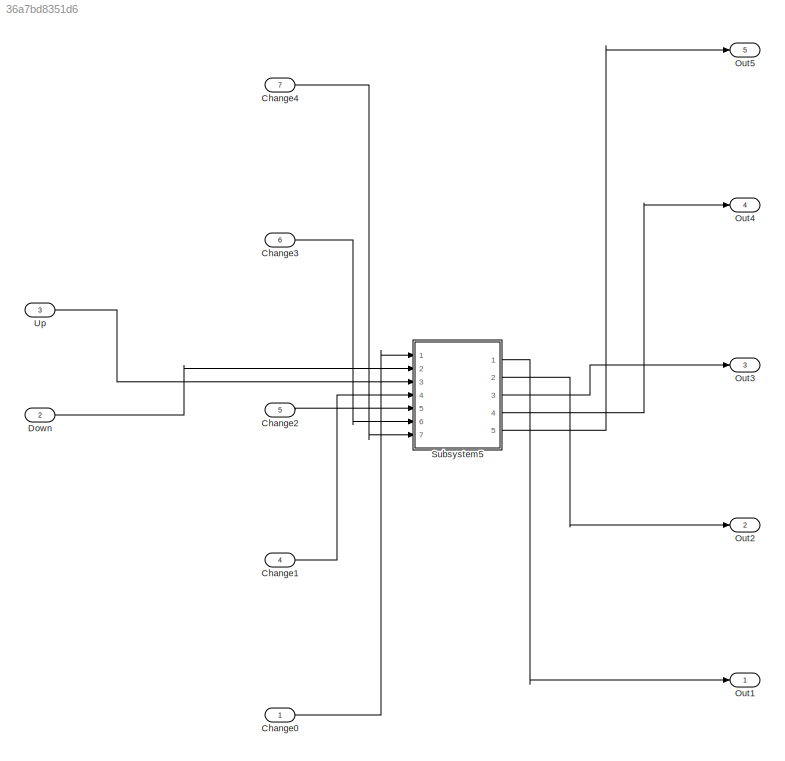
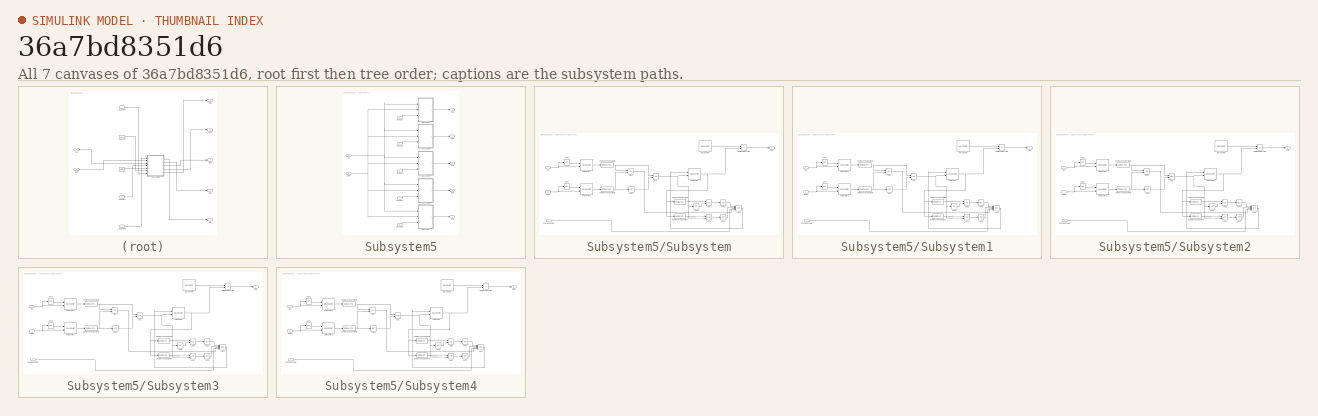
[diagram: thumbnail index - all 7 canvases of the model, root first then tree order]
MODEL slx_36a7bd8351d6
KIND model
BLOCK [Inport] Change0
  IconDisplay = Port number
  OutDataTypeStr = boolean
BLOCK [Inport] Change1
  IconDisplay = Port number
  OutDataTypeStr = boolean
  Port = 4
BLOCK [Inport] Change2
  IconDisplay = Port number
  OutDataTypeStr = boolean
  Port = 5
BLOCK [Inport] Change3
  IconDisplay = Port number
  OutDataTypeStr = boolean
  Port = 6
BLOCK [Inport] Change4
  IconDisplay = Port number
  OutDataTypeStr = boolean
  Port = 7
BLOCK [Inport] Down
  IconDisplay = Port number
  OutDataTypeStr = boolean
  Port = 2
BLOCK [Outport] Out1
  IconDisplay = Port number
BLOCK [Outport] Out2
  IconDisplay = Port number
  Port = 2
BLOCK [Outport] Out3
  IconDisplay = Port number
  Port = 3
BLOCK [Outport] Out4
  IconDisplay = Port number
  Port = 4
BLOCK [Outport] Out5
  IconDisplay = Port number
  Port = 5
BLOCK [SubSystem] Subsystem5
  Ports = [7, 5]
  RequestExecContextInheritance = off
  TreatAsAtomicUnit = on
BLOCK [Inport] Subsystem5/Change0
  IconDisplay = Port number
  OutDataTypeStr = boolean
BLOCK [Inport] Subsystem5/Change1
  IconDisplay = Port number
  OutDataTypeStr = boolean
  Port = 4
BLOCK [Inport] Subsystem5/Change2
  IconDisplay = Port number
  OutDataTypeStr = boolean
  Port = 5
BLOCK [Inport] Subsystem5/Change3
  IconDisplay = Port number
  OutDataTypeStr = boolean
  Port = 6
BLOCK [Inport] Subsystem5/Change4
  IconDisplay = Port number
  OutDataTypeStr = boolean
  Port = 7
BLOCK [Inport] Subsystem5/Down
  IconDisplay = Port number
  OutDataTypeStr = boolean
  Port = 2
BLOCK [Outport] Subsystem5/Out1
  IconDisplay = Port number
BLOCK [Outport] Subsystem5/Out2
  IconDisplay = Port number
  Port = 2
BLOCK [Outport] Subsystem5/Out3
  IconDisplay = Port number
  Port = 3
BLOCK [Outport] Subsystem5/Out4
  IconDisplay = Port number
  Port = 4
BLOCK [Outport] Subsystem5/Out5
  IconDisplay = Port number
  Port = 5
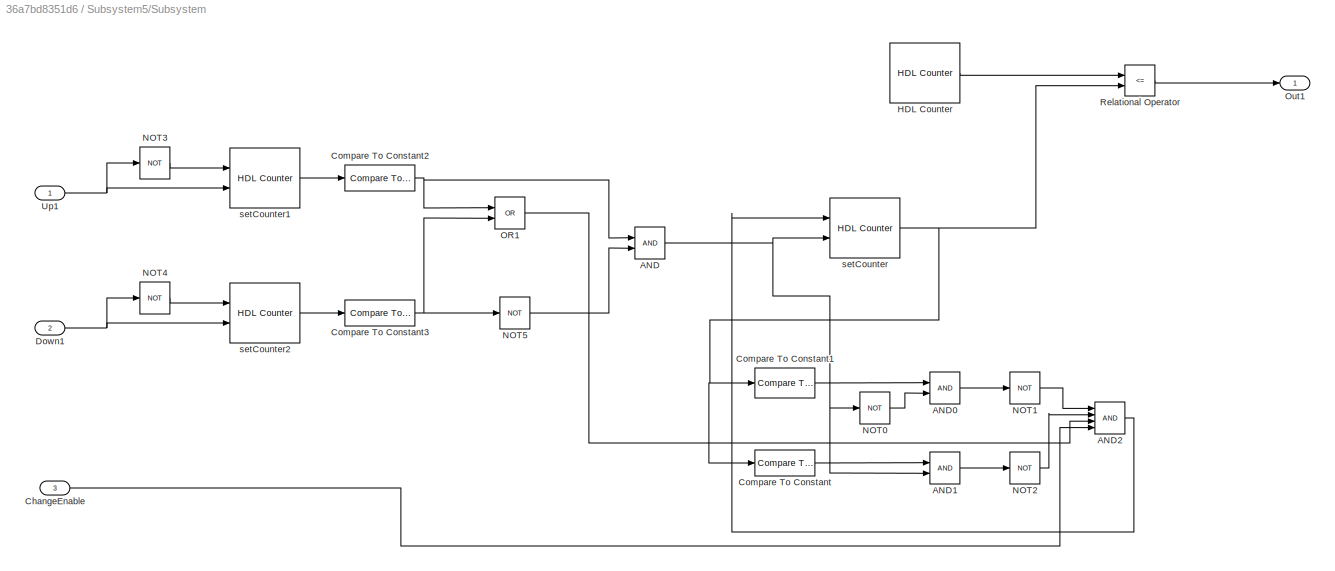
BLOCK [SubSystem] Subsystem5/Subsystem
  Ports = [3, 1]
  RequestExecContextInheritance = off
BLOCK [Logic] Subsystem5/Subsystem/AND
  AllPortsSameDT = off
  IconShape = distinctive
  OutDataTypeStr = boolean
  Ports = [2, 1]
BLOCK [Logic] Subsystem5/Subsystem/AND0
  AllPortsSameDT = off
  IconShape = distinctive
  OutDataTypeStr = boolean
  Ports = [2, 1]
BLOCK [Logic] Subsystem5/Subsystem/AND1
  AllPortsSameDT = off
  IconShape = distinctive
  OutDataTypeStr = boolean
  Ports = [2, 1]
BLOCK [Logic] Subsystem5/Subsystem/AND2
  AllPortsSameDT = off
  IconShape = distinctive
  Inputs = 4
  OutDataTypeStr = boolean
  Ports = [4, 1]
BLOCK [Inport] Subsystem5/Subsystem/ChangeEnable
  IconDisplay = Port number
  Port = 3
BLOCK [Reference] Subsystem5/Subsystem/Compare To Constant  REF=simulink/Logic and Bit
Operations/Compare
To Constant
  OutDataTypeStr = boolean
  Ports = [1, 1]
  SourceBlock = simulink/Logic and Bit\nOperations/Compare\nTo Constant
  SourceType = Compare To Constant
  ZeroCross = on
  const = 120000
  relop = >=
BLOCK [Reference] Subsystem5/Subsystem/Compare To Constant1  REF=simulink/Logic and Bit
Operations/Compare
To Constant
  OutDataTypeStr = boolean
  Ports = [1, 1]
  SourceBlock = simulink/Logic and Bit\nOperations/Compare\nTo Constant
  SourceType = Compare To Constant
  ZeroCross = on
  const = 30000
  relop = <=
BLOCK [Reference] Subsystem5/Subsystem/Compare To Constant2  REF=simulink/Logic and Bit
Operations/Compare
To Constant
  OutDataTypeStr = boolean
  Ports = [1, 1]
  SourceBlock = simulink/Logic and Bit\nOperations/Compare\nTo Constant
  SourceType = Compare To Constant
  ZeroCross = on
  const = 12500000
  relop = ==
BLOCK [Reference] Subsystem5/Subsystem/Compare To Constant3  REF=simulink/Logic and Bit
Operations/Compare
To Constant
  OutDataTypeStr = boolean
  Ports = [1, 1]
  SourceBlock = simulink/Logic and Bit\nOperations/Compare\nTo Constant
  SourceType = Compare To Constant
  ZeroCross = on
  const = 12500000
  relop = ==
BLOCK [Inport] Subsystem5/Subsystem/Down1
  IconDisplay = Port number
  Port = 2
BLOCK [Reference] Subsystem5/Subsystem/HDL Counter  REF=hdlsllib/HDL Operations/HDL Counter
  CountDataType = Unsigned
  CountDirPort = off
  CountEnbPort = off
  CountFracLen = 0
  CountFrom = 0
  CountFromType = Initial value
  CountInit = 0
  CountLoadPort = off
  CountMax = 1000000
  CountResetPort = off
  CountSampTime = 1
  CountStep = 1
  CountType = Count limited
  CountWordLen = 32
  Ports = [0, 1]
  SourceBlock = hdlsllib/HDL Operations/HDL Counter
  SourceType = HDL Counter
BLOCK [Logic] Subsystem5/Subsystem/NOT0
  AllPortsSameDT = off
  IconShape = distinctive
  Operator = NOT
  OutDataTypeStr = boolean
  Ports = [1, 1]
BLOCK [Logic] Subsystem5/Subsystem/NOT1
  AllPortsSameDT = off
  IconShape = distinctive
  Operator = NOT
  OutDataTypeStr = boolean
  Ports = [1, 1]
BLOCK [Logic] Subsystem5/Subsystem/NOT2
  AllPortsSameDT = off
  IconShape = distinctive
  Operator = NOT
  OutDataTypeStr = boolean
  Ports = [1, 1]
BLOCK [Logic] Subsystem5/Subsystem/NOT3
  AllPortsSameDT = off
  IconShape = distinctive
  Operator = NOT
  OutDataTypeStr = boolean
  Ports = [1, 1]
BLOCK [Logic] Subsystem5/Subsystem/NOT4
  AllPortsSameDT = off
  IconShape = distinctive
  Operator = NOT
  OutDataTypeStr = boolean
  Ports = [1, 1]
BLOCK [Logic] Subsystem5/Subsystem/NOT5
  AllPortsSameDT = off
  IconShape = distinctive
  Operator = NOT
  OutDataTypeStr = boolean
  Ports = [1, 1]
BLOCK [Logic] Subsystem5/Subsystem/OR1
  AllPortsSameDT = off
  IconShape = distinctive
  Operator = OR
  OutDataTypeStr = boolean
  Ports = [2, 1]
BLOCK [Outport] Subsystem5/Subsystem/Out1
  IconDisplay = Port number
BLOCK [RelationalOperator] Subsystem5/Subsystem/Relational Operator
  InputSameDT = off
  Operator = <=
  OutDataTypeStr = boolean
  Ports = [2, 1]
BLOCK [Inport] Subsystem5/Subsystem/Up1
  IconDisplay = Port number
BLOCK [Reference] Subsystem5/Subsystem/setCounter  REF=hdlsllib/HDL Operations/HDL Counter
  CountDataType = Unsigned
  CountDirPort = on
  CountEnbPort = on
  CountFracLen = 0
  CountFrom = 30000
  CountFromType = Specify
  CountInit = 75000
  CountLoadPort = off
  CountMax = 120000
  CountResetPort = off
  CountSampTime = 1
  CountStep = 6000
  CountType = Count limited
  CountWordLen = 32
  Ports = [2, 1]
  SourceBlock = hdlsllib/HDL Operations/HDL Counter
  SourceType = HDL Counter
BLOCK [Reference] Subsystem5/Subsystem/setCounter1  REF=hdlsllib/HDL Operations/HDL Counter
  CountDataType = Unsigned
  CountDirPort = off
  CountEnbPort = on
  CountFracLen = 0
  CountFrom = 0
  CountFromType = Initial value
  CountInit = 0
  CountLoadPort = off
  CountMax = 50000000
  CountResetPort = on
  CountSampTime = 1
  CountStep = 1
  CountType = Count limited
  CountWordLen = 32
  Ports = [2, 1]
  SourceBlock = hdlsllib/HDL Operations/HDL Counter
  SourceType = HDL Counter
BLOCK [Reference] Subsystem5/Subsystem/setCounter2  REF=hdlsllib/HDL Operations/HDL Counter
  CountDataType = Unsigned
  CountDirPort = off
  CountEnbPort = on
  CountFracLen = 0
  CountFrom = 0
  CountFromType = Initial value
  CountInit = 0
  CountLoadPort = off
  CountMax = 50000000
  CountResetPort = on
  CountSampTime = 1
  CountStep = 1
  CountType = Count limited
  CountWordLen = 32
  Ports = [2, 1]
  SourceBlock = hdlsllib/HDL Operations/HDL Counter
  SourceType = HDL Counter
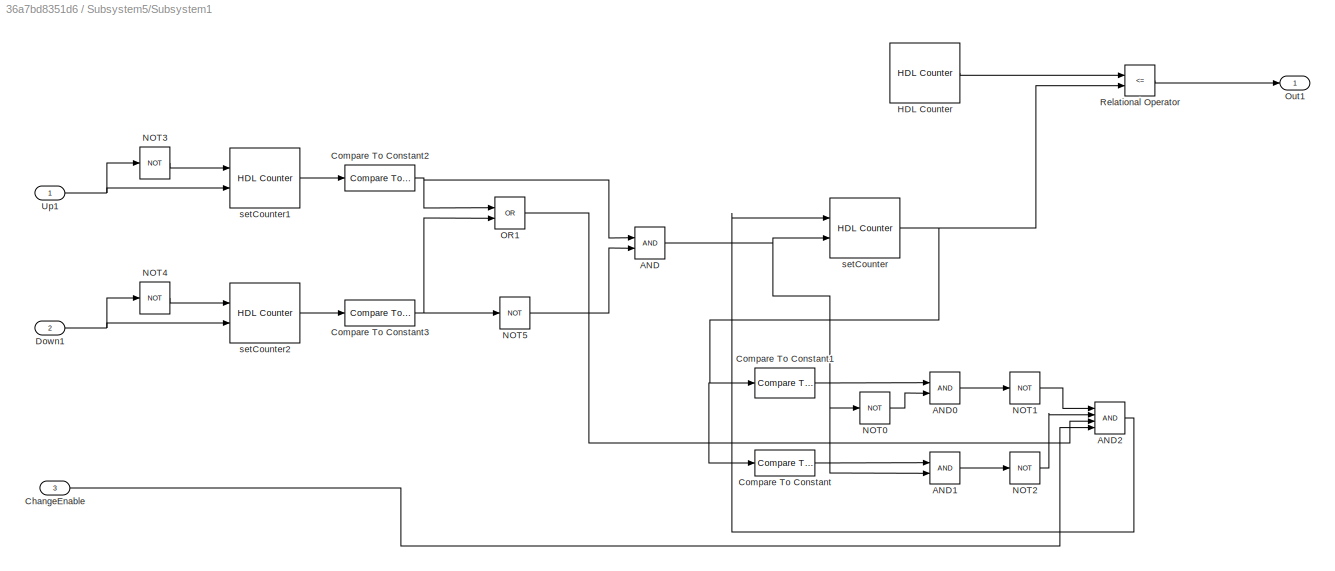
BLOCK [SubSystem] Subsystem5/Subsystem1
  Ports = [3, 1]
  RequestExecContextInheritance = off
BLOCK [Logic] Subsystem5/Subsystem1/AND
  AllPortsSameDT = off
  IconShape = distinctive
  OutDataTypeStr = boolean
  Ports = [2, 1]
BLOCK [Logic] Subsystem5/Subsystem1/AND0
  AllPortsSameDT = off
  IconShape = distinctive
  OutDataTypeStr = boolean
  Ports = [2, 1]
BLOCK [Logic] Subsystem5/Subsystem1/AND1
  AllPortsSameDT = off
  IconShape = distinctive
  OutDataTypeStr = boolean
  Ports = [2, 1]
BLOCK [Logic] Subsystem5/Subsystem1/AND2
  AllPortsSameDT = off
  IconShape = distinctive
  Inputs = 4
  OutDataTypeStr = boolean
  Ports = [4, 1]
BLOCK [Inport] Subsystem5/Subsystem1/ChangeEnable
  IconDisplay = Port number
  Port = 3
BLOCK [Reference] Subsystem5/Subsystem1/Compare To Constant  REF=simulink/Logic and Bit
Operations/Compare
To Constant
  OutDataTypeStr = boolean
  Ports = [1, 1]
  SourceBlock = simulink/Logic and Bit\nOperations/Compare\nTo Constant
  SourceType = Compare To Constant
  ZeroCross = on
  const = 120000
  relop = >=
BLOCK [Reference] Subsystem5/Subsystem1/Compare To Constant1  REF=simulink/Logic and Bit
Operations/Compare
To Constant
  OutDataTypeStr = boolean
  Ports = [1, 1]
  SourceBlock = simulink/Logic and Bit\nOperations/Compare\nTo Constant
  SourceType = Compare To Constant
  ZeroCross = on
  const = 30000
  relop = <=
BLOCK [Reference] Subsystem5/Subsystem1/Compare To Constant2  REF=simulink/Logic and Bit
Operations/Compare
To Constant
  OutDataTypeStr = boolean
  Ports = [1, 1]
  SourceBlock = simulink/Logic and Bit\nOperations/Compare\nTo Constant
  SourceType = Compare To Constant
  ZeroCross = on
  const = 12500000
  relop = ==
BLOCK [Reference] Subsystem5/Subsystem1/Compare To Constant3  REF=simulink/Logic and Bit
Operations/Compare
To Constant
  OutDataTypeStr = boolean
  Ports = [1, 1]
  SourceBlock = simulink/Logic and Bit\nOperations/Compare\nTo Constant
  SourceType = Compare To Constant
  ZeroCross = on
  const = 12500000
  relop = ==
BLOCK [Inport] Subsystem5/Subsystem1/Down1
  IconDisplay = Port number
  Port = 2
BLOCK [Reference] Subsystem5/Subsystem1/HDL Counter  REF=hdlsllib/HDL Operations/HDL Counter
  CountDataType = Unsigned
  CountDirPort = off
  CountEnbPort = off
  CountFracLen = 0
  CountFrom = 0
  CountFromType = Initial value
  CountInit = 0
  CountLoadPort = off
  CountMax = 1000000
  CountResetPort = off
  CountSampTime = 1
  CountStep = 1
  CountType = Count limited
  CountWordLen = 32
  Ports = [0, 1]
  SourceBlock = hdlsllib/HDL Operations/HDL Counter
  SourceType = HDL Counter
BLOCK [Logic] Subsystem5/Subsystem1/NOT0
  AllPortsSameDT = off
  IconShape = distinctive
  Operator = NOT
  OutDataTypeStr = boolean
  Ports = [1, 1]
BLOCK [Logic] Subsystem5/Subsystem1/NOT1
  AllPortsSameDT = off
  IconShape = distinctive
  Operator = NOT
  OutDataTypeStr = boolean
  Ports = [1, 1]
BLOCK [Logic] Subsystem5/Subsystem1/NOT2
  AllPortsSameDT = off
  IconShape = distinctive
  Operator = NOT
  OutDataTypeStr = boolean
  Ports = [1, 1]
BLOCK [Logic] Subsystem5/Subsystem1/NOT3
  AllPortsSameDT = off
  IconShape = distinctive
  Operator = NOT
  OutDataTypeStr = boolean
  Ports = [1, 1]
BLOCK [Logic] Subsystem5/Subsystem1/NOT4
  AllPortsSameDT = off
  IconShape = distinctive
  Operator = NOT
  OutDataTypeStr = boolean
  Ports = [1, 1]
BLOCK [Logic] Subsystem5/Subsystem1/NOT5
  AllPortsSameDT = off
  IconShape = distinctive
  Operator = NOT
  OutDataTypeStr = boolean
  Ports = [1, 1]
BLOCK [Logic] Subsystem5/Subsystem1/OR1
  AllPortsSameDT = off
  IconShape = distinctive
  Operator = OR
  OutDataTypeStr = boolean
  Ports = [2, 1]
BLOCK [Outport] Subsystem5/Subsystem1/Out1
  IconDisplay = Port number
BLOCK [RelationalOperator] Subsystem5/Subsystem1/Relational Operator
  InputSameDT = off
  Operator = <=
  OutDataTypeStr = boolean
  Ports = [2, 1]
BLOCK [Inport] Subsystem5/Subsystem1/Up1
  IconDisplay = Port number
BLOCK [Reference] Subsystem5/Subsystem1/setCounter  REF=hdlsllib/HDL Operations/HDL Counter
  CountDataType = Unsigned
  CountDirPort = on
  CountEnbPort = on
  CountFracLen = 0
  CountFrom = 30000
  CountFromType = Specify
  CountInit = 75000
  CountLoadPort = off
  CountMax = 120000
  CountResetPort = off
  CountSampTime = 1
  CountStep = 6000
  CountType = Count limited
  CountWordLen = 32
  Ports = [2, 1]
  SourceBlock = hdlsllib/HDL Operations/HDL Counter
  SourceType = HDL Counter
BLOCK [Reference] Subsystem5/Subsystem1/setCounter1  REF=hdlsllib/HDL Operations/HDL Counter
  CountDataType = Unsigned
  CountDirPort = off
  CountEnbPort = on
  CountFracLen = 0
  CountFrom = 0
  CountFromType = Initial value
  CountInit = 0
  CountLoadPort = off
  CountMax = 50000000
  CountResetPort = on
  CountSampTime = 1
  CountStep = 1
  CountType = Count limited
  CountWordLen = 32
  Ports = [2, 1]
  SourceBlock = hdlsllib/HDL Operations/HDL Counter
  SourceType = HDL Counter
BLOCK [Reference] Subsystem5/Subsystem1/setCounter2  REF=hdlsllib/HDL Operations/HDL Counter
  CountDataType = Unsigned
  CountDirPort = off
  CountEnbPort = on
  CountFracLen = 0
  CountFrom = 0
  CountFromType = Initial value
  CountInit = 0
  CountLoadPort = off
  CountMax = 50000000
  CountResetPort = on
  CountSampTime = 1
  CountStep = 1
  CountType = Count limited
  CountWordLen = 32
  Ports = [2, 1]
  SourceBlock = hdlsllib/HDL Operations/HDL Counter
  SourceType = HDL Counter
BLOCK [SubSystem] Subsystem5/Subsystem2
  Ports = [3, 1]
  RequestExecContextInheritance = off
BLOCK [Logic] Subsystem5/Subsystem2/AND
  AllPortsSameDT = off
  IconShape = distinctive
  OutDataTypeStr = boolean
  Ports = [2, 1]
BLOCK [Logic] Subsystem5/Subsystem2/AND0
  AllPortsSameDT = off
  IconShape = distinctive
  OutDataTypeStr = boolean
  Ports = [2, 1]
BLOCK [Logic] Subsystem5/Subsystem2/AND1
  AllPortsSameDT = off
  IconShape = distinctive
  OutDataTypeStr = boolean
  Ports = [2, 1]
BLOCK [Logic] Subsystem5/Subsystem2/AND2
  AllPortsSameDT = off
  IconShape = distinctive
  Inputs = 4
  OutDataTypeStr = boolean
  Ports = [4, 1]
BLOCK [Inport] Subsystem5/Subsystem2/ChangeEnable
  IconDisplay = Port number
  Port = 3
BLOCK [Reference] Subsystem5/Subsystem2/Compare To Constant  REF=simulink/Logic and Bit
Operations/Compare
To Constant
  OutDataTypeStr = boolean
  Ports = [1, 1]
  SourceBlock = simulink/Logic and Bit\nOperations/Compare\nTo Constant
  SourceType = Compare To Constant
  ZeroCross = on
  const = 120000
  relop = >=
BLOCK [Reference] Subsystem5/Subsystem2/Compare To Constant1  REF=simulink/Logic and Bit
Operations/Compare
To Constant
  OutDataTypeStr = boolean
  Ports = [1, 1]
  SourceBlock = simulink/Logic and Bit\nOperations/Compare\nTo Constant
  SourceType = Compare To Constant
  ZeroCross = on
  const = 30000
  relop = <=
BLOCK [Reference] Subsystem5/Subsystem2/Compare To Constant2  REF=simulink/Logic and Bit
Operations/Compare
To Constant
  OutDataTypeStr = boolean
  Ports = [1, 1]
  SourceBlock = simulink/Logic and Bit\nOperations/Compare\nTo Constant
  SourceType = Compare To Constant
  ZeroCross = on
  const = 12500000
  relop = ==
BLOCK [Reference] Subsystem5/Subsystem2/Compare To Constant3  REF=simulink/Logic and Bit
Operations/Compare
To Constant
  OutDataTypeStr = boolean
  Ports = [1, 1]
  SourceBlock = simulink/Logic and Bit\nOperations/Compare\nTo Constant
  SourceType = Compare To Constant
  ZeroCross = on
  const = 12500000
  relop = ==
BLOCK [Inport] Subsystem5/Subsystem2/Down1
  IconDisplay = Port number
  Port = 2
BLOCK [Reference] Subsystem5/Subsystem2/HDL Counter  REF=hdlsllib/HDL Operations/HDL Counter
  CountDataType = Unsigned
  CountDirPort = off
  CountEnbPort = off
  CountFracLen = 0
  CountFrom = 0
  CountFromType = Initial value
  CountInit = 0
  CountLoadPort = off
  CountMax = 1000000
  CountResetPort = off
  CountSampTime = 1
  CountStep = 1
  CountType = Count limited
  CountWordLen = 32
  Ports = [0, 1]
  SourceBlock = hdlsllib/HDL Operations/HDL Counter
  SourceType = HDL Counter
BLOCK [Logic] Subsystem5/Subsystem2/NOT0
  AllPortsSameDT = off
  IconShape = distinctive
  Operator = NOT
  OutDataTypeStr = boolean
  Ports = [1, 1]
BLOCK [Logic] Subsystem5/Subsystem2/NOT1
  AllPortsSameDT = off
  IconShape = distinctive
  Operator = NOT
  OutDataTypeStr = boolean
  Ports = [1, 1]
BLOCK [Logic] Subsystem5/Subsystem2/NOT2
  AllPortsSameDT = off
  IconShape = distinctive
  Operator = NOT
  OutDataTypeStr = boolean
  Ports = [1, 1]
BLOCK [Logic] Subsystem5/Subsystem2/NOT3
  AllPortsSameDT = off
  IconShape = distinctive
  Operator = NOT
  OutDataTypeStr = boolean
  Ports = [1, 1]
BLOCK [Logic] Subsystem5/Subsystem2/NOT4
  AllPortsSameDT = off
  IconShape = distinctive
  Operator = NOT
  OutDataTypeStr = boolean
  Ports = [1, 1]
BLOCK [Logic] Subsystem5/Subsystem2/NOT5
  AllPortsSameDT = off
  IconShape = distinctive
  Operator = NOT
  OutDataTypeStr = boolean
  Ports = [1, 1]
BLOCK [Logic] Subsystem5/Subsystem2/OR1
  AllPortsSameDT = off
  IconShape = distinctive
  Operator = OR
  OutDataTypeStr = boolean
  Ports = [2, 1]
BLOCK [Outport] Subsystem5/Subsystem2/Out1
  IconDisplay = Port number
BLOCK [RelationalOperator] Subsystem5/Subsystem2/Relational Operator
  InputSameDT = off
  Operator = <=
  OutDataTypeStr = boolean
  Ports = [2, 1]
BLOCK [Inport] Subsystem5/Subsystem2/Up1
  IconDisplay = Port number
BLOCK [Reference] Subsystem5/Subsystem2/setCounter  REF=hdlsllib/HDL Operations/HDL Counter
  CountDataType = Unsigned
  CountDirPort = on
  CountEnbPort = on
  CountFracLen = 0
  CountFrom = 30000
  CountFromType = Specify
  CountInit = 75000
  CountLoadPort = off
  CountMax = 120000
  CountResetPort = off
  CountSampTime = 1
  CountStep = 6000
  CountType = Count limited
  CountWordLen = 32
  Ports = [2, 1]
  SourceBlock = hdlsllib/HDL Operations/HDL Counter
  SourceType = HDL Counter
BLOCK [Reference] Subsystem5/Subsystem2/setCounter1  REF=hdlsllib/HDL Operations/HDL Counter
  CountDataType = Unsigned
  CountDirPort = off
  CountEnbPort = on
  CountFracLen = 0
  CountFrom = 0
  CountFromType = Initial value
  CountInit = 0
  CountLoadPort = off
  CountMax = 50000000
  CountResetPort = on
  CountSampTime = 1
  CountStep = 1
  CountType = Count limited
  CountWordLen = 32
  Ports = [2, 1]
  SourceBlock = hdlsllib/HDL Operations/HDL Counter
  SourceType = HDL Counter
BLOCK [Reference] Subsystem5/Subsystem2/setCounter2  REF=hdlsllib/HDL Operations/HDL Counter
  CountDataType = Unsigned
  CountDirPort = off
  CountEnbPort = on
  CountFracLen = 0
  CountFrom = 0
  CountFromType = Initial value
  CountInit = 0
  CountLoadPort = off
  CountMax = 50000000
  CountResetPort = on
  CountSampTime = 1
  CountStep = 1
  CountType = Count limited
  CountWordLen = 32
  Ports = [2, 1]
  SourceBlock = hdlsllib/HDL Operations/HDL Counter
  SourceType = HDL Counter
BLOCK [SubSystem] Subsystem5/Subsystem3
  Ports = [3, 1]
  RequestExecContextInheritance = off
BLOCK [Logic] Subsystem5/Subsystem3/AND
  AllPortsSameDT = off
  IconShape = distinctive
  OutDataTypeStr = boolean
  Ports = [2, 1]
BLOCK [Logic] Subsystem5/Subsystem3/AND0
  AllPortsSameDT = off
  IconShape = distinctive
  OutDataTypeStr = boolean
  Ports = [2, 1]
BLOCK [Logic] Subsystem5/Subsystem3/AND1
  AllPortsSameDT = off
  IconShape = distinctive
  OutDataTypeStr = boolean
  Ports = [2, 1]
BLOCK [Logic] Subsystem5/Subsystem3/AND2
  AllPortsSameDT = off
  IconShape = distinctive
  Inputs = 4
  OutDataTypeStr = boolean
  Ports = [4, 1]
BLOCK [Inport] Subsystem5/Subsystem3/ChangeEnable
  IconDisplay = Port number
  Port = 3
BLOCK [Reference] Subsystem5/Subsystem3/Compare To Constant  REF=simulink/Logic and Bit
Operations/Compare
To Constant
  OutDataTypeStr = boolean
  Ports = [1, 1]
  SourceBlock = simulink/Logic and Bit\nOperations/Compare\nTo Constant
  SourceType = Compare To Constant
  ZeroCross = on
  const = 120000
  relop = >=
BLOCK [Reference] Subsystem5/Subsystem3/Compare To Constant1  REF=simulink/Logic and Bit
Operations/Compare
To Constant
  OutDataTypeStr = boolean
  Ports = [1, 1]
  SourceBlock = simulink/Logic and Bit\nOperations/Compare\nTo Constant
  SourceType = Compare To Constant
  ZeroCross = on
  const = 30000
  relop = <=
BLOCK [Reference] Subsystem5/Subsystem3/Compare To Constant2  REF=simulink/Logic and Bit
Operations/Compare
To Constant
  OutDataTypeStr = boolean
  Ports = [1, 1]
  SourceBlock = simulink/Logic and Bit\nOperations/Compare\nTo Constant
  SourceType = Compare To Constant
  ZeroCross = on
  const = 12500000
  relop = ==
BLOCK [Reference] Subsystem5/Subsystem3/Compare To Constant3  REF=simulink/Logic and Bit
Operations/Compare
To Constant
  OutDataTypeStr = boolean
  Ports = [1, 1]
  SourceBlock = simulink/Logic and Bit\nOperations/Compare\nTo Constant
  SourceType = Compare To Constant
  ZeroCross = on
  const = 12500000
  relop = ==
BLOCK [Inport] Subsystem5/Subsystem3/Down1
  IconDisplay = Port number
  Port = 2
BLOCK [Reference] Subsystem5/Subsystem3/HDL Counter  REF=hdlsllib/HDL Operations/HDL Counter
  CountDataType = Unsigned
  CountDirPort = off
  CountEnbPort = off
  CountFracLen = 0
  CountFrom = 0
  CountFromType = Initial value
  CountInit = 0
  CountLoadPort = off
  CountMax = 1000000
  CountResetPort = off
  CountSampTime = 1
  CountStep = 1
  CountType = Count limited
  CountWordLen = 32
  Ports = [0, 1]
  SourceBlock = hdlsllib/HDL Operations/HDL Counter
  SourceType = HDL Counter
BLOCK [Logic] Subsystem5/Subsystem3/NOT0
  AllPortsSameDT = off
  IconShape = distinctive
  Operator = NOT
  OutDataTypeStr = boolean
  Ports = [1, 1]
BLOCK [Logic] Subsystem5/Subsystem3/NOT1
  AllPortsSameDT = off
  IconShape = distinctive
  Operator = NOT
  OutDataTypeStr = boolean
  Ports = [1, 1]
BLOCK [Logic] Subsystem5/Subsystem3/NOT2
  AllPortsSameDT = off
  IconShape = distinctive
  Operator = NOT
  OutDataTypeStr = boolean
  Ports = [1, 1]
BLOCK [Logic] Subsystem5/Subsystem3/NOT3
  AllPortsSameDT = off
  IconShape = distinctive
  Operator = NOT
  OutDataTypeStr = boolean
  Ports = [1, 1]
BLOCK [Logic] Subsystem5/Subsystem3/NOT4
  AllPortsSameDT = off
  IconShape = distinctive
  Operator = NOT
  OutDataTypeStr = boolean
  Ports = [1, 1]
BLOCK [Logic] Subsystem5/Subsystem3/NOT5
  AllPortsSameDT = off
  IconShape = distinctive
  Operator = NOT
  OutDataTypeStr = boolean
  Ports = [1, 1]
BLOCK [Logic] Subsystem5/Subsystem3/OR1
  AllPortsSameDT = off
  IconShape = distinctive
  Operator = OR
  OutDataTypeStr = boolean
  Ports = [2, 1]
BLOCK [Outport] Subsystem5/Subsystem3/Out1
  IconDisplay = Port number
BLOCK [RelationalOperator] Subsystem5/Subsystem3/Relational Operator
  InputSameDT = off
  Operator = <=
  OutDataTypeStr = boolean
  Ports = [2, 1]
BLOCK [Inport] Subsystem5/Subsystem3/Up1
  IconDisplay = Port number
BLOCK [Reference] Subsystem5/Subsystem3/setCounter  REF=hdlsllib/HDL Operations/HDL Counter
  CountDataType = Unsigned
  CountDirPort = on
  CountEnbPort = on
  CountFracLen = 0
  CountFrom = 30000
  CountFromType = Specify
  CountInit = 75000
  CountLoadPort = off
  CountMax = 120000
  CountResetPort = off
  CountSampTime = 1
  CountStep = 6000
  CountType = Count limited
  CountWordLen = 32
  Ports = [2, 1]
  SourceBlock = hdlsllib/HDL Operations/HDL Counter
  SourceType = HDL Counter
BLOCK [Reference] Subsystem5/Subsystem3/setCounter1  REF=hdlsllib/HDL Operations/HDL Counter
  CountDataType = Unsigned
  CountDirPort = off
  CountEnbPort = on
  CountFracLen = 0
  CountFrom = 0
  CountFromType = Initial value
  CountInit = 0
  CountLoadPort = off
  CountMax = 50000000
  CountResetPort = on
  CountSampTime = 1
  CountStep = 1
  CountType = Count limited
  CountWordLen = 32
  Ports = [2, 1]
  SourceBlock = hdlsllib/HDL Operations/HDL Counter
  SourceType = HDL Counter
BLOCK [Reference] Subsystem5/Subsystem3/setCounter2  REF=hdlsllib/HDL Operations/HDL Counter
  CountDataType = Unsigned
  CountDirPort = off
  CountEnbPort = on
  CountFracLen = 0
  CountFrom = 0
  CountFromType = Initial value
  CountInit = 0
  CountLoadPort = off
  CountMax = 50000000
  CountResetPort = on
  CountSampTime = 1
  CountStep = 1
  CountType = Count limited
  CountWordLen = 32
  Ports = [2, 1]
  SourceBlock = hdlsllib/HDL Operations/HDL Counter
  SourceType = HDL Counter
BLOCK [SubSystem] Subsystem5/Subsystem4
  Ports = [3, 1]
  RequestExecContextInheritance = off
BLOCK [Logic] Subsystem5/Subsystem4/AND
  AllPortsSameDT = off
  IconShape = distinctive
  OutDataTypeStr = boolean
  Ports = [2, 1]
BLOCK [Logic] Subsystem5/Subsystem4/AND0
  AllPortsSameDT = off
  IconShape = distinctive
  OutDataTypeStr = boolean
  Ports = [2, 1]
BLOCK [Logic] Subsystem5/Subsystem4/AND1
  AllPortsSameDT = off
  IconShape = distinctive
  OutDataTypeStr = boolean
  Ports = [2, 1]
BLOCK [Logic] Subsystem5/Subsystem4/AND2
  AllPortsSameDT = off
  IconShape = distinctive
  Inputs = 4
  OutDataTypeStr = boolean
  Ports = [4, 1]
BLOCK [Inport] Subsystem5/Subsystem4/ChangeEnable
  IconDisplay = Port number
  Port = 3
BLOCK [Reference] Subsystem5/Subsystem4/Compare To Constant  REF=simulink/Logic and Bit
Operations/Compare
To Constant
  OutDataTypeStr = boolean
  Ports = [1, 1]
  SourceBlock = simulink/Logic and Bit\nOperations/Compare\nTo Constant
  SourceType = Compare To Constant
  ZeroCross = on
  const = 120000
  relop = >=
BLOCK [Reference] Subsystem5/Subsystem4/Compare To Constant1  REF=simulink/Logic and Bit
Operations/Compare
To Constant
  OutDataTypeStr = boolean
  Ports = [1, 1]
  SourceBlock = simulink/Logic and Bit\nOperations/Compare\nTo Constant
  SourceType = Compare To Constant
  ZeroCross = on
  const = 30000
  relop = <=
BLOCK [Reference] Subsystem5/Subsystem4/Compare To Constant2  REF=simulink/Logic and Bit
Operations/Compare
To Constant
  OutDataTypeStr = boolean
  Ports = [1, 1]
  SourceBlock = simulink/Logic and Bit\nOperations/Compare\nTo Constant
  SourceType = Compare To Constant
  ZeroCross = on
  const = 12500000
  relop = ==
BLOCK [Reference] Subsystem5/Subsystem4/Compare To Constant3  REF=simulink/Logic and Bit
Operations/Compare
To Constant
  OutDataTypeStr = boolean
  Ports = [1, 1]
  SourceBlock = simulink/Logic and Bit\nOperations/Compare\nTo Constant
  SourceType = Compare To Constant
  ZeroCross = on
  const = 12500000
  relop = ==
BLOCK [Inport] Subsystem5/Subsystem4/Down1
  IconDisplay = Port number
  Port = 2
BLOCK [Reference] Subsystem5/Subsystem4/HDL Counter  REF=hdlsllib/HDL Operations/HDL Counter
  CountDataType = Unsigned
  CountDirPort = off
  CountEnbPort = off
  CountFracLen = 0
  CountFrom = 0
  CountFromType = Initial value
  CountInit = 0
  CountLoadPort = off
  CountMax = 1000000
  CountResetPort = off
  CountSampTime = 1
  CountStep = 1
  CountType = Count limited
  CountWordLen = 32
  Ports = [0, 1]
  SourceBlock = hdlsllib/HDL Operations/HDL Counter
  SourceType = HDL Counter
BLOCK [Logic] Subsystem5/Subsystem4/NOT0
  AllPortsSameDT = off
  IconShape = distinctive
  Operator = NOT
  OutDataTypeStr = boolean
  Ports = [1, 1]
BLOCK [Logic] Subsystem5/Subsystem4/NOT1
  AllPortsSameDT = off
  IconShape = distinctive
  Operator = NOT
  OutDataTypeStr = boolean
  Ports = [1, 1]
BLOCK [Logic] Subsystem5/Subsystem4/NOT2
  AllPortsSameDT = off
  IconShape = distinctive
  Operator = NOT
  OutDataTypeStr = boolean
  Ports = [1, 1]
BLOCK [Logic] Subsystem5/Subsystem4/NOT3
  AllPortsSameDT = off
  IconShape = distinctive
  Operator = NOT
  OutDataTypeStr = boolean
  Ports = [1, 1]
BLOCK [Logic] Subsystem5/Subsystem4/NOT4
  AllPortsSameDT = off
  IconShape = distinctive
  Operator = NOT
  OutDataTypeStr = boolean
  Ports = [1, 1]
BLOCK [Logic] Subsystem5/Subsystem4/NOT5
  AllPortsSameDT = off
  IconShape = distinctive
  Operator = NOT
  OutDataTypeStr = boolean
  Ports = [1, 1]
BLOCK [Logic] Subsystem5/Subsystem4/OR1
  AllPortsSameDT = off
  IconShape = distinctive
  Operator = OR
  OutDataTypeStr = boolean
  Ports = [2, 1]
BLOCK [Outport] Subsystem5/Subsystem4/Out1
  IconDisplay = Port number
BLOCK [RelationalOperator] Subsystem5/Subsystem4/Relational Operator
  InputSameDT = off
  Operator = <=
  OutDataTypeStr = boolean
  Ports = [2, 1]
BLOCK [Inport] Subsystem5/Subsystem4/Up1
  IconDisplay = Port number
BLOCK [Reference] Subsystem5/Subsystem4/setCounter  REF=hdlsllib/HDL Operations/HDL Counter
  CountDataType = Unsigned
  CountDirPort = on
  CountEnbPort = on
  CountFracLen = 0
  CountFrom = 30000
  CountFromType = Specify
  CountInit = 75000
  CountLoadPort = off
  CountMax = 120000
  CountResetPort = off
  CountSampTime = 1
  CountStep = 6000
  CountType = Count limited
  CountWordLen = 32
  Ports = [2, 1]
  SourceBlock = hdlsllib/HDL Operations/HDL Counter
  SourceType = HDL Counter
BLOCK [Reference] Subsystem5/Subsystem4/setCounter1  REF=hdlsllib/HDL Operations/HDL Counter
  CountDataType = Unsigned
  CountDirPort = off
  CountEnbPort = on
  CountFracLen = 0
  CountFrom = 0
  CountFromType = Initial value
  CountInit = 0
  CountLoadPort = off
  CountMax = 50000000
  CountResetPort = on
  CountSampTime = 1
  CountStep = 1
  CountType = Count limited
  CountWordLen = 32
  Ports = [2, 1]
  SourceBlock = hdlsllib/HDL Operations/HDL Counter
  SourceType = HDL Counter
BLOCK [Reference] Subsystem5/Subsystem4/setCounter2  REF=hdlsllib/HDL Operations/HDL Counter
  CountDataType = Unsigned
  CountDirPort = off
  CountEnbPort = on
  CountFracLen = 0
  CountFrom = 0
  CountFromType = Initial value
  CountInit = 0
  CountLoadPort = off
  CountMax = 50000000
  CountResetPort = on
  CountSampTime = 1
  CountStep = 1
  CountType = Count limited
  CountWordLen = 32
  Ports = [2, 1]
  SourceBlock = hdlsllib/HDL Operations/HDL Counter
  SourceType = HDL Counter
BLOCK [Inport] Subsystem5/Up
  IconDisplay = Port number
  OutDataTypeStr = boolean
  Port = 3
BLOCK [Inport] Up
  IconDisplay = Port number
  OutDataTypeStr = boolean
  Port = 3
LINE Change0:1 -> Subsystem5:1
LINE Change1:1 -> Subsystem5:4
LINE Change2:1 -> Subsystem5:5
LINE Change3:1 -> Subsystem5:6
LINE Change4:1 -> Subsystem5:7
LINE Down:1 -> Subsystem5:2
LINE Subsystem5/Change0:1 -> Subsystem5/Subsystem:3
LINE Subsystem5/Change1:1 -> Subsystem5/Subsystem1:3
LINE Subsystem5/Change2:1 -> Subsystem5/Subsystem2:3
LINE Subsystem5/Change3:1 -> Subsystem5/Subsystem3:3
LINE Subsystem5/Change4:1 -> Subsystem5/Subsystem4:3
NET Subsystem5/Down:1 -> Subsystem5/Subsystem1:2, Subsystem5/Subsystem2:2, Subsystem5/Subsystem3:2, Subsystem5/Subsystem4:2, Subsystem5/Subsystem:2
LINE Subsystem5/Subsystem/AND0:1 -> Subsystem5/Subsystem/NOT1:1
LINE Subsystem5/Subsystem/AND1:1 -> Subsystem5/Subsystem/NOT2:1
LINE Subsystem5/Subsystem/AND2:1 -> Subsystem5/Subsystem/setCounter:1
NET Subsystem5/Subsystem/AND:1 -> Subsystem5/Subsystem/AND1:2, Subsystem5/Subsystem/NOT0:1, Subsystem5/Subsystem/setCounter:2
LINE Subsystem5/Subsystem/ChangeEnable:1 -> Subsystem5/Subsystem/AND2:4
LINE Subsystem5/Subsystem/Compare To Constant1:1 -> Subsystem5/Subsystem/AND0:1
NET Subsystem5/Subsystem/Compare To Constant2:1 -> Subsystem5/Subsystem/AND:1, Subsystem5/Subsystem/OR1:1
NET Subsystem5/Subsystem/Compare To Constant3:1 -> Subsystem5/Subsystem/NOT5:1, Subsystem5/Subsystem/OR1:2
LINE Subsystem5/Subsystem/Compare To Constant:1 -> Subsystem5/Subsystem/AND1:1
NET Subsystem5/Subsystem/Down1:1 -> Subsystem5/Subsystem/NOT4:1, Subsystem5/Subsystem/setCounter2:2
LINE Subsystem5/Subsystem/HDL Counter:1 -> Subsystem5/Subsystem/Relational Operator:1
LINE Subsystem5/Subsystem/NOT0:1 -> Subsystem5/Subsystem/AND0:2
LINE Subsystem5/Subsystem/NOT1:1 -> Subsystem5/Subsystem/AND2:1
LINE Subsystem5/Subsystem/NOT2:1 -> Subsystem5/Subsystem/AND2:2
LINE Subsystem5/Subsystem/NOT3:1 -> Subsystem5/Subsystem/setCounter1:1
LINE Subsystem5/Subsystem/NOT4:1 -> Subsystem5/Subsystem/setCounter2:1
LINE Subsystem5/Subsystem/NOT5:1 -> Subsystem5/Subsystem/AND:2
LINE Subsystem5/Subsystem/OR1:1 -> Subsystem5/Subsystem/AND2:3
LINE Subsystem5/Subsystem/Relational Operator:1 -> Subsystem5/Subsystem/Out1:1
NET Subsystem5/Subsystem/Up1:1 -> Subsystem5/Subsystem/NOT3:1, Subsystem5/Subsystem/setCounter1:2
LINE Subsystem5/Subsystem/setCounter1:1 -> Subsystem5/Subsystem/Compare To Constant2:1
LINE Subsystem5/Subsystem/setCounter2:1 -> Subsystem5/Subsystem/Compare To Constant3:1
NET Subsystem5/Subsystem/setCounter:1 -> Subsystem5/Subsystem/Compare To Constant1:1, Subsystem5/Subsystem/Compare To Constant:1, Subsystem5/Subsystem/Relational Operator:2
LINE Subsystem5/Subsystem1/AND0:1 -> Subsystem5/Subsystem1/NOT1:1
LINE Subsystem5/Subsystem1/AND1:1 -> Subsystem5/Subsystem1/NOT2:1
LINE Subsystem5/Subsystem1/AND2:1 -> Subsystem5/Subsystem1/setCounter:1
NET Subsystem5/Subsystem1/AND:1 -> Subsystem5/Subsystem1/AND1:2, Subsystem5/Subsystem1/NOT0:1, Subsystem5/Subsystem1/setCounter:2
LINE Subsystem5/Subsystem1/ChangeEnable:1 -> Subsystem5/Subsystem1/AND2:4
LINE Subsystem5/Subsystem1/Compare To Constant1:1 -> Subsystem5/Subsystem1/AND0:1
NET Subsystem5/Subsystem1/Compare To Constant2:1 -> Subsystem5/Subsystem1/AND:1, Subsystem5/Subsystem1/OR1:1
NET Subsystem5/Subsystem1/Compare To Constant3:1 -> Subsystem5/Subsystem1/NOT5:1, Subsystem5/Subsystem1/OR1:2
LINE Subsystem5/Subsystem1/Compare To Constant:1 -> Subsystem5/Subsystem1/AND1:1
NET Subsystem5/Subsystem1/Down1:1 -> Subsystem5/Subsystem1/NOT4:1, Subsystem5/Subsystem1/setCounter2:2
LINE Subsystem5/Subsystem1/HDL Counter:1 -> Subsystem5/Subsystem1/Relational Operator:1
LINE Subsystem5/Subsystem1/NOT0:1 -> Subsystem5/Subsystem1/AND0:2
LINE Subsystem5/Subsystem1/NOT1:1 -> Subsystem5/Subsystem1/AND2:1
LINE Subsystem5/Subsystem1/NOT2:1 -> Subsystem5/Subsystem1/AND2:2
LINE Subsystem5/Subsystem1/NOT3:1 -> Subsystem5/Subsystem1/setCounter1:1
LINE Subsystem5/Subsystem1/NOT4:1 -> Subsystem5/Subsystem1/setCounter2:1
LINE Subsystem5/Subsystem1/NOT5:1 -> Subsystem5/Subsystem1/AND:2
LINE Subsystem5/Subsystem1/OR1:1 -> Subsystem5/Subsystem1/AND2:3
LINE Subsystem5/Subsystem1/Relational Operator:1 -> Subsystem5/Subsystem1/Out1:1
NET Subsystem5/Subsystem1/Up1:1 -> Subsystem5/Subsystem1/NOT3:1, Subsystem5/Subsystem1/setCounter1:2
LINE Subsystem5/Subsystem1/setCounter1:1 -> Subsystem5/Subsystem1/Compare To Constant2:1
LINE Subsystem5/Subsystem1/setCounter2:1 -> Subsystem5/Subsystem1/Compare To Constant3:1
NET Subsystem5/Subsystem1/setCounter:1 -> Subsystem5/Subsystem1/Compare To Constant1:1, Subsystem5/Subsystem1/Compare To Constant:1, Subsystem5/Subsystem1/Relational Operator:2
LINE Subsystem5/Subsystem1:1 -> Subsystem5/Out2:1
LINE Subsystem5/Subsystem2/AND0:1 -> Subsystem5/Subsystem2/NOT1:1
LINE Subsystem5/Subsystem2/AND1:1 -> Subsystem5/Subsystem2/NOT2:1
LINE Subsystem5/Subsystem2/AND2:1 -> Subsystem5/Subsystem2/setCounter:1
NET Subsystem5/Subsystem2/AND:1 -> Subsystem5/Subsystem2/AND1:2, Subsystem5/Subsystem2/NOT0:1, Subsystem5/Subsystem2/setCounter:2
LINE Subsystem5/Subsystem2/ChangeEnable:1 -> Subsystem5/Subsystem2/AND2:4
LINE Subsystem5/Subsystem2/Compare To Constant1:1 -> Subsystem5/Subsystem2/AND0:1
NET Subsystem5/Subsystem2/Compare To Constant2:1 -> Subsystem5/Subsystem2/AND:1, Subsystem5/Subsystem2/OR1:1
NET Subsystem5/Subsystem2/Compare To Constant3:1 -> Subsystem5/Subsystem2/NOT5:1, Subsystem5/Subsystem2/OR1:2
LINE Subsystem5/Subsystem2/Compare To Constant:1 -> Subsystem5/Subsystem2/AND1:1
NET Subsystem5/Subsystem2/Down1:1 -> Subsystem5/Subsystem2/NOT4:1, Subsystem5/Subsystem2/setCounter2:2
LINE Subsystem5/Subsystem2/HDL Counter:1 -> Subsystem5/Subsystem2/Relational Operator:1
LINE Subsystem5/Subsystem2/NOT0:1 -> Subsystem5/Subsystem2/AND0:2
LINE Subsystem5/Subsystem2/NOT1:1 -> Subsystem5/Subsystem2/AND2:1
LINE Subsystem5/Subsystem2/NOT2:1 -> Subsystem5/Subsystem2/AND2:2
LINE Subsystem5/Subsystem2/NOT3:1 -> Subsystem5/Subsystem2/setCounter1:1
LINE Subsystem5/Subsystem2/NOT4:1 -> Subsystem5/Subsystem2/setCounter2:1
LINE Subsystem5/Subsystem2/NOT5:1 -> Subsystem5/Subsystem2/AND:2
LINE Subsystem5/Subsystem2/OR1:1 -> Subsystem5/Subsystem2/AND2:3
LINE Subsystem5/Subsystem2/Relational Operator:1 -> Subsystem5/Subsystem2/Out1:1
NET Subsystem5/Subsystem2/Up1:1 -> Subsystem5/Subsystem2/NOT3:1, Subsystem5/Subsystem2/setCounter1:2
LINE Subsystem5/Subsystem2/setCounter1:1 -> Subsystem5/Subsystem2/Compare To Constant2:1
LINE Subsystem5/Subsystem2/setCounter2:1 -> Subsystem5/Subsystem2/Compare To Constant3:1
NET Subsystem5/Subsystem2/setCounter:1 -> Subsystem5/Subsystem2/Compare To Constant1:1, Subsystem5/Subsystem2/Compare To Constant:1, Subsystem5/Subsystem2/Relational Operator:2
LINE Subsystem5/Subsystem2:1 -> Subsystem5/Out3:1
LINE Subsystem5/Subsystem3/AND0:1 -> Subsystem5/Subsystem3/NOT1:1
LINE Subsystem5/Subsystem3/AND1:1 -> Subsystem5/Subsystem3/NOT2:1
LINE Subsystem5/Subsystem3/AND2:1 -> Subsystem5/Subsystem3/setCounter:1
NET Subsystem5/Subsystem3/AND:1 -> Subsystem5/Subsystem3/AND1:2, Subsystem5/Subsystem3/NOT0:1, Subsystem5/Subsystem3/setCounter:2
LINE Subsystem5/Subsystem3/ChangeEnable:1 -> Subsystem5/Subsystem3/AND2:4
LINE Subsystem5/Subsystem3/Compare To Constant1:1 -> Subsystem5/Subsystem3/AND0:1
NET Subsystem5/Subsystem3/Compare To Constant2:1 -> Subsystem5/Subsystem3/AND:1, Subsystem5/Subsystem3/OR1:1
NET Subsystem5/Subsystem3/Compare To Constant3:1 -> Subsystem5/Subsystem3/NOT5:1, Subsystem5/Subsystem3/OR1:2
LINE Subsystem5/Subsystem3/Compare To Constant:1 -> Subsystem5/Subsystem3/AND1:1
NET Subsystem5/Subsystem3/Down1:1 -> Subsystem5/Subsystem3/NOT4:1, Subsystem5/Subsystem3/setCounter2:2
LINE Subsystem5/Subsystem3/HDL Counter:1 -> Subsystem5/Subsystem3/Relational Operator:1
LINE Subsystem5/Subsystem3/NOT0:1 -> Subsystem5/Subsystem3/AND0:2
LINE Subsystem5/Subsystem3/NOT1:1 -> Subsystem5/Subsystem3/AND2:1
LINE Subsystem5/Subsystem3/NOT2:1 -> Subsystem5/Subsystem3/AND2:2
LINE Subsystem5/Subsystem3/NOT3:1 -> Subsystem5/Subsystem3/setCounter1:1
LINE Subsystem5/Subsystem3/NOT4:1 -> Subsystem5/Subsystem3/setCounter2:1
LINE Subsystem5/Subsystem3/NOT5:1 -> Subsystem5/Subsystem3/AND:2
LINE Subsystem5/Subsystem3/OR1:1 -> Subsystem5/Subsystem3/AND2:3
LINE Subsystem5/Subsystem3/Relational Operator:1 -> Subsystem5/Subsystem3/Out1:1
NET Subsystem5/Subsystem3/Up1:1 -> Subsystem5/Subsystem3/NOT3:1, Subsystem5/Subsystem3/setCounter1:2
LINE Subsystem5/Subsystem3/setCounter1:1 -> Subsystem5/Subsystem3/Compare To Constant2:1
LINE Subsystem5/Subsystem3/setCounter2:1 -> Subsystem5/Subsystem3/Compare To Constant3:1
NET Subsystem5/Subsystem3/setCounter:1 -> Subsystem5/Subsystem3/Compare To Constant1:1, Subsystem5/Subsystem3/Compare To Constant:1, Subsystem5/Subsystem3/Relational Operator:2
LINE Subsystem5/Subsystem3:1 -> Subsystem5/Out4:1
LINE Subsystem5/Subsystem4/AND0:1 -> Subsystem5/Subsystem4/NOT1:1
LINE Subsystem5/Subsystem4/AND1:1 -> Subsystem5/Subsystem4/NOT2:1
LINE Subsystem5/Subsystem4/AND2:1 -> Subsystem5/Subsystem4/setCounter:1
NET Subsystem5/Subsystem4/AND:1 -> Subsystem5/Subsystem4/AND1:2, Subsystem5/Subsystem4/NOT0:1, Subsystem5/Subsystem4/setCounter:2
LINE Subsystem5/Subsystem4/ChangeEnable:1 -> Subsystem5/Subsystem4/AND2:4
LINE Subsystem5/Subsystem4/Compare To Constant1:1 -> Subsystem5/Subsystem4/AND0:1
NET Subsystem5/Subsystem4/Compare To Constant2:1 -> Subsystem5/Subsystem4/AND:1, Subsystem5/Subsystem4/OR1:1
NET Subsystem5/Subsystem4/Compare To Constant3:1 -> Subsystem5/Subsystem4/NOT5:1, Subsystem5/Subsystem4/OR1:2
LINE Subsystem5/Subsystem4/Compare To Constant:1 -> Subsystem5/Subsystem4/AND1:1
NET Subsystem5/Subsystem4/Down1:1 -> Subsystem5/Subsystem4/NOT4:1, Subsystem5/Subsystem4/setCounter2:2
LINE Subsystem5/Subsystem4/HDL Counter:1 -> Subsystem5/Subsystem4/Relational Operator:1
LINE Subsystem5/Subsystem4/NOT0:1 -> Subsystem5/Subsystem4/AND0:2
LINE Subsystem5/Subsystem4/NOT1:1 -> Subsystem5/Subsystem4/AND2:1
LINE Subsystem5/Subsystem4/NOT2:1 -> Subsystem5/Subsystem4/AND2:2
LINE Subsystem5/Subsystem4/NOT3:1 -> Subsystem5/Subsystem4/setCounter1:1
LINE Subsystem5/Subsystem4/NOT4:1 -> Subsystem5/Subsystem4/setCounter2:1
LINE Subsystem5/Subsystem4/NOT5:1 -> Subsystem5/Subsystem4/AND:2
LINE Subsystem5/Subsystem4/OR1:1 -> Subsystem5/Subsystem4/AND2:3
LINE Subsystem5/Subsystem4/Relational Operator:1 -> Subsystem5/Subsystem4/Out1:1
NET Subsystem5/Subsystem4/Up1:1 -> Subsystem5/Subsystem4/NOT3:1, Subsystem5/Subsystem4/setCounter1:2
LINE Subsystem5/Subsystem4/setCounter1:1 -> Subsystem5/Subsystem4/Compare To Constant2:1
LINE Subsystem5/Subsystem4/setCounter2:1 -> Subsystem5/Subsystem4/Compare To Constant3:1
NET Subsystem5/Subsystem4/setCounter:1 -> Subsystem5/Subsystem4/Compare To Constant1:1, Subsystem5/Subsystem4/Compare To Constant:1, Subsystem5/Subsystem4/Relational Operator:2
LINE Subsystem5/Subsystem4:1 -> Subsystem5/Out5:1
LINE Subsystem5/Subsystem:1 -> Subsystem5/Out1:1
NET Subsystem5/Up:1 -> Subsystem5/Subsystem1:1, Subsystem5/Subsystem2:1, Subsystem5/Subsystem3:1, Subsystem5/Subsystem4:1, Subsystem5/Subsystem:1
LINE Subsystem5:1 -> Out1:1
LINE Subsystem5:2 -> Out2:1
LINE Subsystem5:3 -> Out3:1
LINE Subsystem5:4 -> Out4:1
LINE Subsystem5:5 -> Out5:1
LINE Up:1 -> Subsystem5:3
note: NET lines group one-source signal fan-out (src -> all destinations, sorted); 1:1 wires keep LINE
